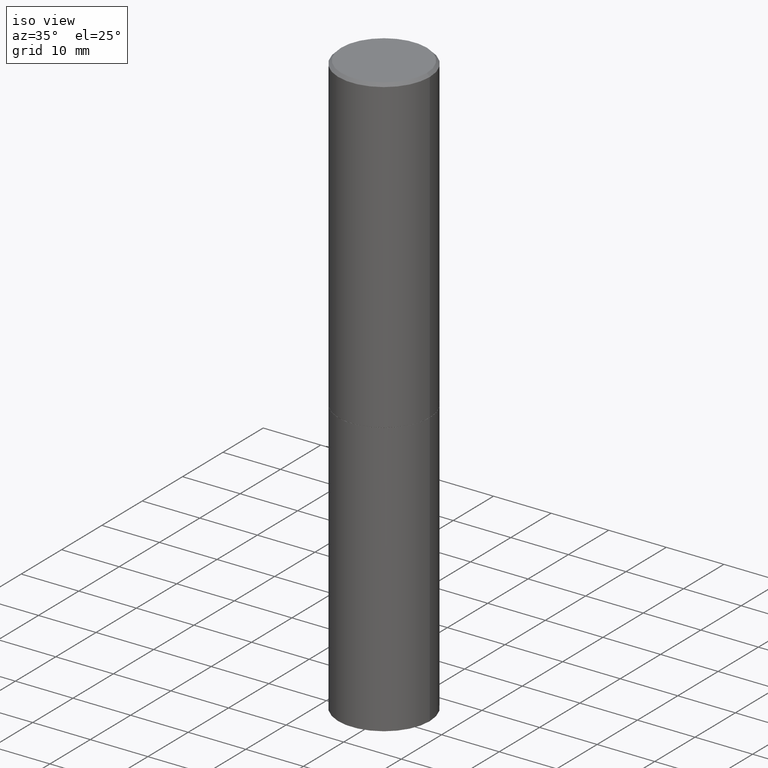
[diagram: clean part render]
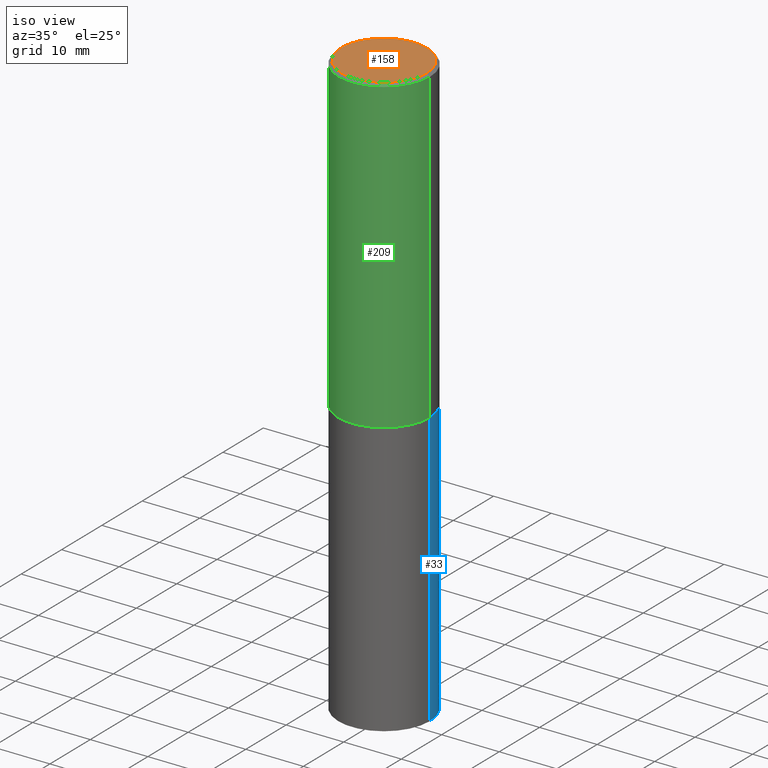
[diagram: same view with three faces highlighted in distinct colors, each labeled with its STEP entity id]
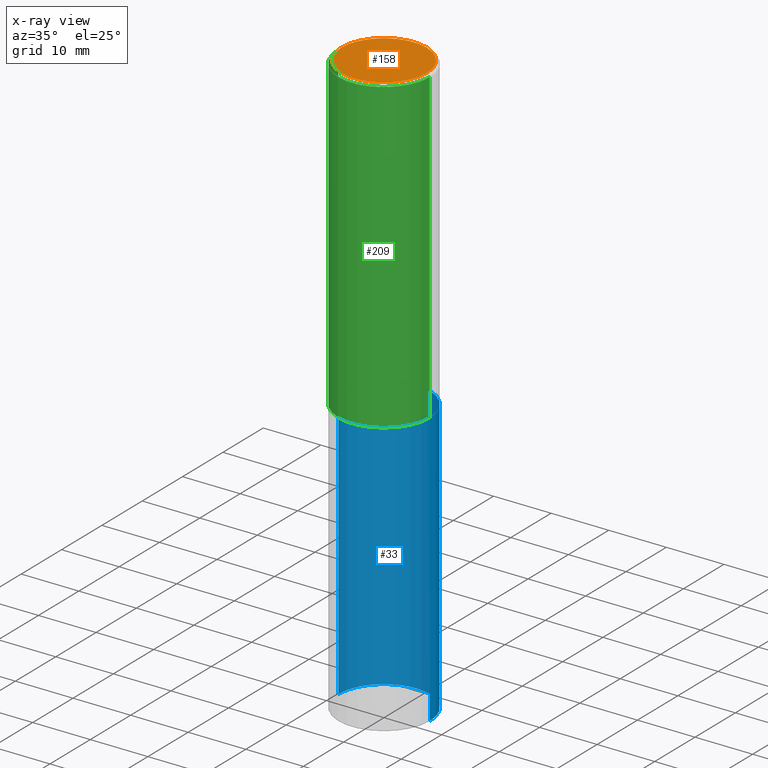
[diagram: x-ray of the same camera — body ghosted, the three highlighted faces saturated]
A machine part, iso view with three faces highlighted in distinct colors.
The next image is the same camera in x-ray (body ghosted, the three faces saturated) — at least one of them is partly hidden behind the body in this view.
Their STEP definitions:

[orange] entity #158 — the highlighted planar face has unit normal (0, -0, -1).
#14 = EDGE_CURVE ( 'NONE', #227, #77, #171, .T. ) ;
#30 = CARTESIAN_POINT ( 'NONE',  ( 2.042516583223231356E-15, 0.2924999999999997602, -1.019124035366569212E-15 ) ) ;
#56 = DIRECTION ( 'NONE',  ( 1.000000000000000000, -6.982962677686266711E-15, 4.876067333457693400E-29 ) ) ;
#62 = CARTESIAN_POINT ( 'NONE',  ( -0.2924999999999997602, 2.077431396611662611E-15, 4.268512490086005323E-18 ) ) ;
#68 = CARTESIAN_POINT ( 'NONE',  ( -1.043851414335219820E-46, 1.490343170380447200E-32, 4.268512490100411279E-18 ) ) ;
#77 = VERTEX_POINT ( 'NONE', #359 ) ;
#80 = CIRCLE ( 'NONE', #228, 0.2924999999999997602 ) ;
#103 = ORIENTED_EDGE ( 'NONE', *, *, #14, .T. ) ;
#120 = CARTESIAN_POINT ( 'NONE',  ( -1.043851414335219820E-46, 1.490343170380447200E-32, 4.268512490100411279E-18 ) ) ;
#139 = FACE_OUTER_BOUND ( 'NONE', #241, .T. ) ;
#152 = DIRECTION ( 'NONE',  ( -1.000000000000000000, 6.982962677686265922E-15, -4.876176775795935793E-29 ) ) ;
#158 = ADVANCED_FACE ( 'NONE', ( #139 ), #192, .F. ) ;
#161 = AXIS2_PLACEMENT_3D ( 'NONE', #120, #254, #56 ) ;
#171 = CIRCLE ( 'NONE', #161, 0.2924999999999997602 ) ;
#177 = DIRECTION ( 'NONE',  ( -2.445468806185136597E-29, 3.491481338843145583E-15, 1.000000000000000000 ) ) ;
#192 = PLANE ( 'NONE',  #349 ) ;
#225 = DIRECTION ( 'NONE',  ( 2.438088387897960049E-29, -3.491481338843145188E-15, -1.000000000000000000 ) ) ;
#226 = EDGE_CURVE ( 'NONE', #77, #227, #80, .T. ) ;
#227 = VERTEX_POINT ( 'NONE', #62 ) ;
#228 = AXIS2_PLACEMENT_3D ( 'NONE', #68, #177, #310 ) ;
#241 = EDGE_LOOP ( 'NONE', ( #103, #275 ) ) ;
#254 = DIRECTION ( 'NONE',  ( -2.445468806185136597E-29, 3.491481338843145583E-15, 1.000000000000000000 ) ) ;
#275 = ORIENTED_EDGE ( 'NONE', *, *, #226, .T. ) ;
#310 = DIRECTION ( 'NONE',  ( 1.000000000000000000, -6.982962677686266711E-15, 4.876067333457693400E-29 ) ) ;
#349 = AXIS2_PLACEMENT_3D ( 'NONE', #30, #225, #152 ) ;
#359 = CARTESIAN_POINT ( 'NONE',  ( 0.2924999999999997602, -2.110215457714318353E-15, 4.268512490114932791E-18 ) ) ;

[blue] entity #33 — the highlighted cylindrical surface (partial cylindrical patch) has radius 7.9375 mm, axis along (-0, 0, 1).
#3 = VERTEX_POINT ( 'NONE', #190 ) ;
#6 = CARTESIAN_POINT ( 'NONE',  ( 9.781875224740546387E-29, -1.396592535537258233E-14, -4.000000000000000000 ) ) ;
#9 = DIRECTION ( 'NONE',  ( -2.445468806185136597E-29, 3.491481338843145583E-15, 1.000000000000000000 ) ) ;
#23 = EDGE_CURVE ( 'NONE', #3, #99, #160, .T. ) ;
#29 = DIRECTION ( 'NONE',  ( -2.445468806185136877E-29, 3.491481338843145188E-15, 1.000000000000000000 ) ) ;
#33 = ADVANCED_FACE ( 'NONE', ( #122 ), #91, .T. ) ;
#42 = VERTEX_POINT ( 'NONE', #53 ) ;
#53 = CARTESIAN_POINT ( 'NONE',  ( -0.3125000000000000000, -8.472215550956819896E-15, -4.000000000000000000 ) ) ;
#59 = CARTESIAN_POINT ( 'NONE',  ( 0.3125000000000000000, -1.614810119214954068E-14, -4.000000000000000000 ) ) ;
#64 = DIRECTION ( 'NONE',  ( 1.000000000000000000, -6.982962677686269077E-15, 0.000000000000000000 ) ) ;
#83 = DIRECTION ( 'NONE',  ( -2.445468806185136597E-29, 3.491481338843145583E-15, 1.000000000000000000 ) ) ;
#86 = EDGE_LOOP ( 'NONE', ( #159, #269, #272, #244 ) ) ;
#91 = CYLINDRICAL_SURFACE ( 'NONE', #259, 0.3125000000000000000 ) ;
#99 = VERTEX_POINT ( 'NONE', #249 ) ;
#109 = VERTEX_POINT ( 'NONE', #59 ) ;
#111 = CARTESIAN_POINT ( 'NONE',  ( -0.3125000000000000000, 2.220446049250313081E-15, -1.537167215704658232E-29 ) ) ;
#122 = FACE_OUTER_BOUND ( 'NONE', #86, .T. ) ;
#125 = VECTOR ( 'NONE', #335, 39.37007874015748143 ) ;
#143 = LINE ( 'NONE', #276, #325 ) ;
#148 = EDGE_CURVE ( 'NONE', #109, #3, #143, .T. ) ;
#159 = ORIENTED_EDGE ( 'NONE', *, *, #199, .T. ) ;
#160 = CIRCLE ( 'NONE', #194, 0.3125000000000000000 ) ;
#190 = CARTESIAN_POINT ( 'NONE',  ( 0.3125000000000000000, -9.601573681818640393E-15, -2.124999999999999556 ) ) ;
#194 = AXIS2_PLACEMENT_3D ( 'NONE', #364, #83, #258 ) ;
#199 = EDGE_CURVE ( 'NONE', #109, #42, #200, .T. ) ;
#200 = CIRCLE ( 'NONE', #340, 0.3125000000000000000 ) ;
#244 = ORIENTED_EDGE ( 'NONE', *, *, #148, .F. ) ;
#249 = CARTESIAN_POINT ( 'NONE',  ( -0.3125000000000000000, -8.472215550956819896E-15, -2.124999999999999556 ) ) ;
#258 = DIRECTION ( 'NONE',  ( 1.000000000000000000, -6.982962677686265133E-15, 0.000000000000000000 ) ) ;
#259 = AXIS2_PLACEMENT_3D ( 'NONE', #339, #342, #303 ) ;
#269 = ORIENTED_EDGE ( 'NONE', *, *, #283, .T. ) ;
#272 = ORIENTED_EDGE ( 'NONE', *, *, #23, .F. ) ;
#276 = CARTESIAN_POINT ( 'NONE',  ( 0.3125000000000000000, -2.182175836776958347E-15, 1.523805242436230075E-29 ) ) ;
#283 = EDGE_CURVE ( 'NONE', #42, #99, #284, .T. ) ;
#284 = LINE ( 'NONE', #111, #125 ) ;
#303 = DIRECTION ( 'NONE',  ( 1.000000000000000000, -6.982962677686266711E-15, 4.876176775795936353E-29 ) ) ;
#325 = VECTOR ( 'NONE', #29, 39.37007874015748143 ) ;
#335 = DIRECTION ( 'NONE',  ( -2.445468806185136877E-29, 3.491481338843145188E-15, 1.000000000000000000 ) ) ;
#339 = CARTESIAN_POINT ( 'NONE',  ( 0.000000000000000000, 0.000000000000000000, 0.000000000000000000 ) ) ;
#340 = AXIS2_PLACEMENT_3D ( 'NONE', #6, #9, #64 ) ;
#342 = DIRECTION ( 'NONE',  ( -2.445468806185136597E-29, 3.491481338843145583E-15, 1.000000000000000000 ) ) ;
#364 = CARTESIAN_POINT ( 'NONE',  ( 5.196621213143414147E-29, -7.419397845041682046E-15, -2.124999999999999556 ) ) ;

[green] entity #209 — the highlighted cylindrical surface (partial cylindrical patch) has radius 7.9375 mm, axis along (-0, 0, 1).
#8 = EDGE_CURVE ( 'NONE', #320, #131, #229, .T. ) ;
#17 = VECTOR ( 'NONE', #87, 39.37007874015748143 ) ;
#34 = CARTESIAN_POINT ( 'NONE',  ( 0.3124999999999998335, -2.213735251080465334E-15, -0.02000000000000007674 ) ) ;
#38 = EDGE_CURVE ( 'NONE', #52, #106, #279, .T. ) ;
#48 = EDGE_LOOP ( 'NONE', ( #298, #329, #210, #193 ) ) ;
#52 = VERTEX_POINT ( 'NONE', #195 ) ;
#55 = CARTESIAN_POINT ( 'NONE',  ( 5.194175744337229665E-29, -7.415906363702840616E-15, -2.123999999999999666 ) ) ;
#81 = CARTESIAN_POINT ( 'NONE',  ( 4.890937612370292426E-31, -6.982962677686317493E-17, -0.02000000000000007674 ) ) ;
#87 = DIRECTION ( 'NONE',  ( -2.445468806185136877E-29, 3.491481338843145188E-15, 1.000000000000000000 ) ) ;
#88 = CIRCLE ( 'NONE', #105, 0.3125000000000000000 ) ;
#105 = AXIS2_PLACEMENT_3D ( 'NONE', #55, #168, #278 ) ;
#106 = VERTEX_POINT ( 'NONE', #251 ) ;
#118 = CARTESIAN_POINT ( 'NONE',  ( -0.3124999999999998890, 2.220446049250312292E-15, -1.537167215704657391E-29 ) ) ;
#126 = EDGE_CURVE ( 'NONE', #52, #320, #88, .T. ) ;
#128 = EDGE_CURVE ( 'NONE', #106, #131, #362, .T. ) ;
#131 = VERTEX_POINT ( 'NONE', #34 ) ;
#136 = AXIS2_PLACEMENT_3D ( 'NONE', #81, #140, #224 ) ;
#140 = DIRECTION ( 'NONE',  ( -2.445468806185136597E-29, 3.491481338843145583E-15, 1.000000000000000000 ) ) ;
#147 = DIRECTION ( 'NONE',  ( 1.000000000000000000, -6.982962677686266711E-15, 4.876176775795935232E-29 ) ) ;
#168 = DIRECTION ( 'NONE',  ( -2.445468806185136597E-29, 3.491481338843145583E-15, 1.000000000000000000 ) ) ;
#193 = ORIENTED_EDGE ( 'NONE', *, *, #128, .F. ) ;
#195 = CARTESIAN_POINT ( 'NONE',  ( -0.3125000000000000000, -1.522421945989535918E-15, -2.123999999999999666 ) ) ;
#197 = DIRECTION ( 'NONE',  ( -2.445468806185136877E-29, 3.491481338843145188E-15, 1.000000000000000000 ) ) ;
#198 = CYLINDRICAL_SURFACE ( 'NONE', #266, 0.3124999999999998890 ) ;
#203 = CARTESIAN_POINT ( 'NONE',  ( 0.3125000000000000000, -9.598082200479797386E-15, -2.123999999999999666 ) ) ;
#207 = DIRECTION ( 'NONE',  ( -2.445468806185136597E-29, 3.491481338843145583E-15, 1.000000000000000000 ) ) ;
#209 = ADVANCED_FACE ( 'NONE', ( #233 ), #198, .T. ) ;
#210 = ORIENTED_EDGE ( 'NONE', *, *, #8, .T. ) ;
#224 = DIRECTION ( 'NONE',  ( 1.000000000000000000, -6.982962677686265133E-15, 0.000000000000000000 ) ) ;
#229 = LINE ( 'NONE', #366, #316 ) ;
#233 = FACE_OUTER_BOUND ( 'NONE', #48, .T. ) ;
#251 = CARTESIAN_POINT ( 'NONE',  ( -0.3124999999999998335, 2.112346210000093866E-15, -0.02000000000000007674 ) ) ;
#266 = AXIS2_PLACEMENT_3D ( 'NONE', #344, #207, #147 ) ;
#278 = DIRECTION ( 'NONE',  ( 1.000000000000000000, -6.982962677686265133E-15, 0.000000000000000000 ) ) ;
#279 = LINE ( 'NONE', #118, #17 ) ;
#298 = ORIENTED_EDGE ( 'NONE', *, *, #38, .F. ) ;
#316 = VECTOR ( 'NONE', #197, 39.37007874015748143 ) ;
#320 = VERTEX_POINT ( 'NONE', #203 ) ;
#329 = ORIENTED_EDGE ( 'NONE', *, *, #126, .T. ) ;
#344 = CARTESIAN_POINT ( 'NONE',  ( 0.000000000000000000, 0.000000000000000000, 0.000000000000000000 ) ) ;
#362 = CIRCLE ( 'NONE', #136, 0.3124999999999998335 ) ;
#366 = CARTESIAN_POINT ( 'NONE',  ( 0.3124999999999998890, -2.182175836776957558E-15, 1.523805242436229235E-29 ) ) ;